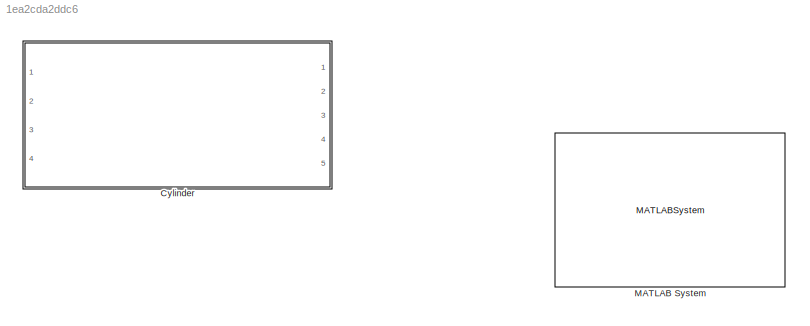
MODEL slx_1ea2cda2ddc6
KIND model
CONFIG AbsTol = auto
CONFIG FixedStep = auto
CONFIG MaxStep = auto
CONFIG MinStep = auto
CONFIG RelTol = 1e-3
CONFIG SampleTimeConstraint = Unconstrained
CONFIG Solver = ode45
CONFIG SolverMode = Auto
CONFIG SolverName = ode45
CONFIG StartTime = 0.0
CONFIG StopTime = 10.0
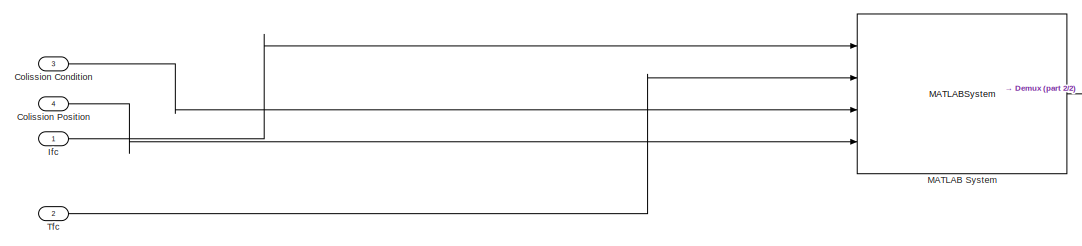
[diagram: Cylinder - part 1/2, middle left region]
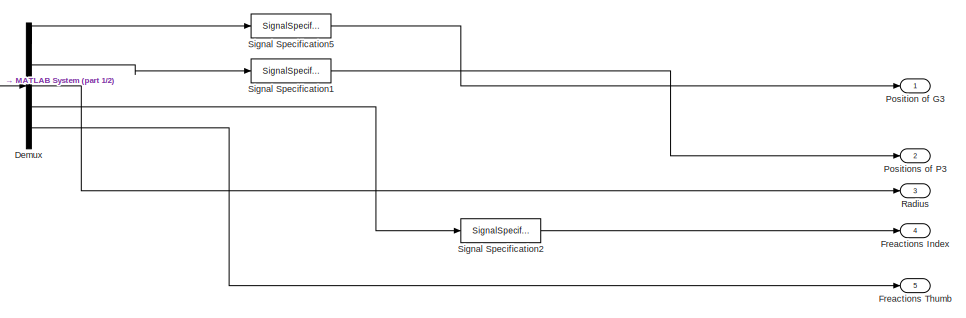
[diagram: Cylinder - part 2/2, right side, full height]
BLOCK [SubSystem] Cylinder
  Ports = [4, 5]
  RequestExecContextInheritance = off
BLOCK [Outport] Cylinder/ Position of G3
  IconDisplay = Port number
BLOCK [Inport] Cylinder/Colission Condition
  IconDisplay = Port number
  Port = 3
BLOCK [Inport] Cylinder/Colission Position
  IconDisplay = Port number
  Port = 4
BLOCK [Demux] Cylinder/Demux
  DisplayOption = bar
  Outputs = 5
  Ports = [1, 5]
BLOCK [Outport] Cylinder/Freactions Index
  IconDisplay = Port number
  Port = 4
BLOCK [Outport] Cylinder/Freactions Thumb
  IconDisplay = Port number
  Port = 5
BLOCK [Inport] Cylinder/Ifc
  IconDisplay = Port number
BLOCK [MATLABSystem] Cylinder/MATLAB System
  F_k_x = []
  F_k_y = []
  F_s_x = []
  F_s_y = []
  Iz = []
  M = []
  MaskDisplay = disp('MinCylinderTester');\nport_label('input',1,'IndexFext');\nport_label('input',2,'ThumbFext');\nport_label('input',3,'CollisionCondition');\nport_label('input',4,'CollisionPosition');\nport_label('output',1,'CylinderResults');
  MaskType = MinCylinderTester
  Ports = [4, 1]
  Position_G3_P3_frame_cylinder = [ 0; 0 ]
  Position_o_G3 = []
  R = []
  SimulateUsing = Code generation
  System = MinCylinderTester
  T_k = []
  T_s = []
  Uck = []
  Ucs = []
  Uk = []
  Urk = []
  Urs = []
  Us = []
  g = []
BLOCK [Outport] Cylinder/Positions of P3
  IconDisplay = Port number
  Port = 2
BLOCK [Outport] Cylinder/Radius
  IconDisplay = Port number
  Port = 3
BLOCK [SignalSpecification] Cylinder/Signal Specification1
  Dimensions = 2
BLOCK [SignalSpecification] Cylinder/Signal Specification2
  Dimensions = 2
BLOCK [SignalSpecification] Cylinder/Signal Specification5
  Dimensions = 2
BLOCK [Inport] Cylinder/Tfc
  IconDisplay = Port number
  Port = 2
BLOCK [MATLABSystem] MATLAB System
  F_k_x = []
  F_k_y = []
  F_s_x = []
  F_s_y = []
  Iz = []
  M = []
  MaskDisplay = disp('MinCylinderTester');\nport_label('input',1,'Urk');\nport_label('input',2,'IndexFext');\nport_label('input',3,'ThumbFext');\nport_label('input',4,'CollisionCondition');\nport_label('input',5,'CollisionPosition');\nport_label('input',6,'xDotG3');\nport_label('input',7,'yDotG3');\nport_label('input',8,'angleDot');\nport_label('input',9,'xPositionG3');\nport_label('input',10,'yPositionG3');\nport_label('in...<+59ch>
  MaskType = MinCylinderTester
  Ports = [11, 1]
  Position_G3_P3_frame_cylinder = [ 0; 0 ]
  Position_o_G3 = []
  R = []
  SimulateUsing = Code generation
  System = MinCylinderTester
  T_k = []
  T_s = []
  Uck = []
  Ucs = []
  Uk = []
  Urk = []
  Urs = []
  Us = []
  g = []
LINE Cylinder/Colission Condition:1 -> Cylinder/MATLAB System:3
LINE Cylinder/Colission Position:1 -> Cylinder/MATLAB System:4
LINE Cylinder/Demux:1 -> Cylinder/Signal Specification5:1
LINE Cylinder/Demux:2 -> Cylinder/Signal Specification1:1
LINE Cylinder/Demux:3 -> Cylinder/Radius:1
LINE Cylinder/Demux:4 -> Cylinder/Signal Specification2:1
LINE Cylinder/Demux:5 -> Cylinder/Freactions Thumb:1
LINE Cylinder/Ifc:1 -> Cylinder/MATLAB System:1
LINE Cylinder/MATLAB System:1 -> Cylinder/Demux:1
LINE Cylinder/Signal Specification1:1 -> Cylinder/Positions of P3:1
LINE Cylinder/Signal Specification2:1 -> Cylinder/Freactions Index:1
LINE Cylinder/Signal Specification5:1 -> Cylinder/ Position of G3:1
LINE Cylinder/Tfc:1 -> Cylinder/MATLAB System:2
